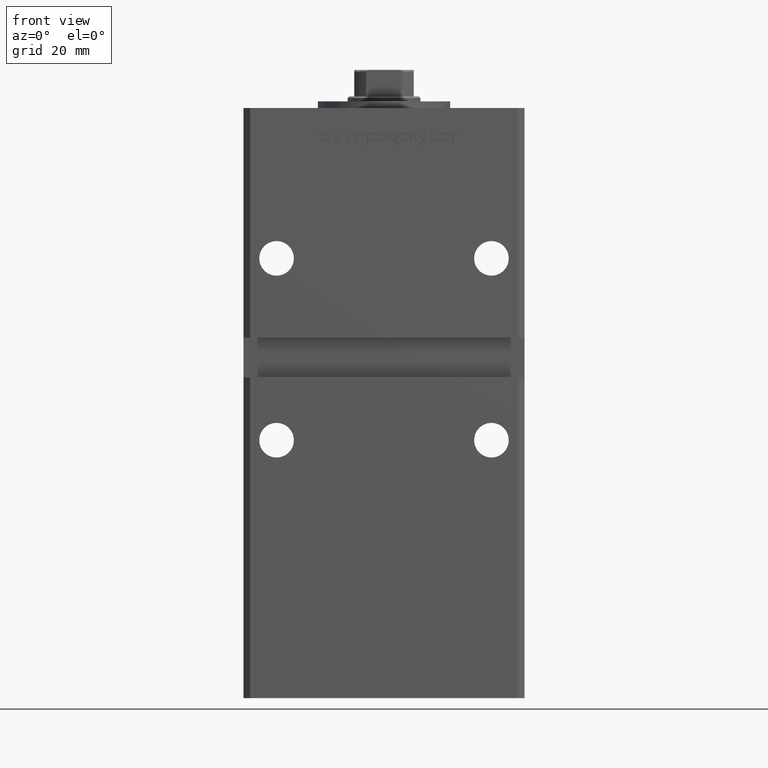
[diagram: clean part render]
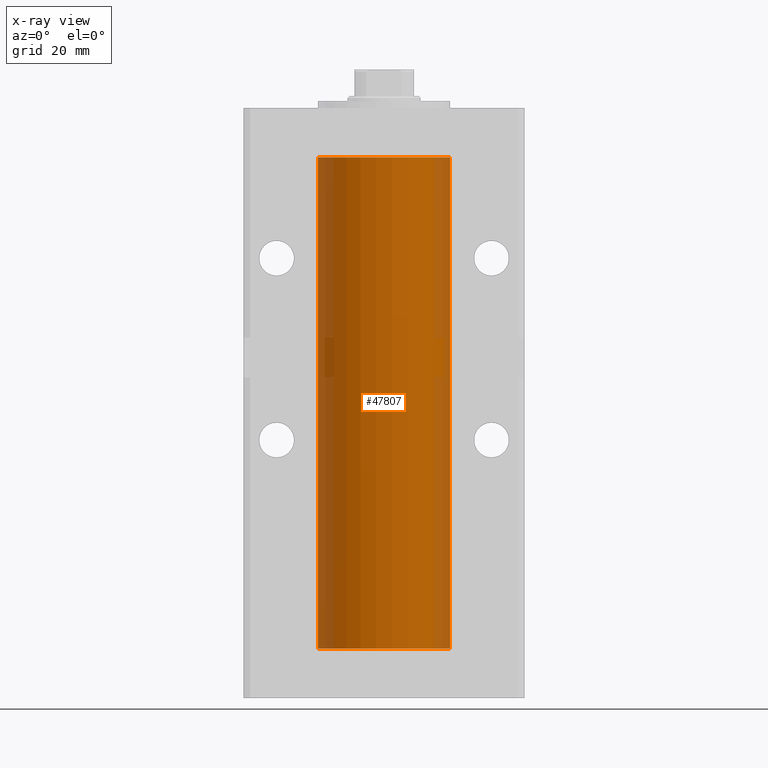
[diagram: x-ray — body ghosted, one internal face saturated and labeled with its STEP entity id]
A machine part, front view, then the same camera in x-ray: the body is ghosted and one INTERNAL B-rep face — a face not visible from any outside direction — is saturated and labeled: STEP entity #47807.
In plain terms, the highlighted cylindrical surface (partial cylindrical patch) has radius 20 mm, axis along (-0, -0, -1).
Its self-contained STEP definition (entity closure, byte-faithful):
#2777 = DIRECTION ( 'NONE',  ( -0.000000000000000000, -0.000000000000000000, -1.000000000000000000 ) ) ;
#2890 = VECTOR ( 'NONE', #51630, 1000.000000000000000 ) ;
#3007 = CARTESIAN_POINT ( 'NONE',  ( -20.00000000000000000, 0.000000000000000000, 148.5000000000000000 ) ) ;
#5040 = ORIENTED_EDGE ( 'NONE', *, *, #47344, .T. ) ;
#6278 = DIRECTION ( 'NONE',  ( -1.000000000000000000, 0.000000000000000000, 0.000000000000000000 ) ) ;
#6811 = FACE_OUTER_BOUND ( 'NONE', #30926, .T. ) ;
#6934 = CARTESIAN_POINT ( 'NONE',  ( 0.000000000000000000, 0.000000000000000000, 0.000000000000000000 ) ) ;
#8327 = CARTESIAN_POINT ( 'NONE',  ( -20.00000000000000000, 0.000000000000000000, 0.000000000000000000 ) ) ;
#8884 = ORIENTED_EDGE ( 'NONE', *, *, #19935, .F. ) ;
#11592 = EDGE_CURVE ( 'NONE', #43194, #28260, #23650, .T. ) ;
#11735 = CIRCLE ( 'NONE', #14317, 20.00000000000000000 ) ;
#13659 = CARTESIAN_POINT ( 'NONE',  ( 20.00000000000000000, 2.449293598294706513E-15, 148.5000000000000000 ) ) ;
#13901 = CIRCLE ( 'NONE', #52550, 20.00000000000000000 ) ;
#14317 = AXIS2_PLACEMENT_3D ( 'NONE', #6934, #52613, #47795 ) ;
#14802 = AXIS2_PLACEMENT_3D ( 'NONE', #35564, #2777, #6278 ) ;
#15621 = ORIENTED_EDGE ( 'NONE', *, *, #45995, .T. ) ;
#16504 = ORIENTED_EDGE ( 'NONE', *, *, #11592, .F. ) ;
#19935 = EDGE_CURVE ( 'NONE', #28260, #37546, #11735, .T. ) ;
#21451 = DIRECTION ( 'NONE',  ( -0.000000000000000000, -0.000000000000000000, -1.000000000000000000 ) ) ;
#21925 = DIRECTION ( 'NONE',  ( -0.000000000000000000, 0.000000000000000000, 1.000000000000000000 ) ) ;
#23650 = LINE ( 'NONE', #48388, #2890 ) ;
#28260 = VERTEX_POINT ( 'NONE', #8327 ) ;
#30711 = CARTESIAN_POINT ( 'NONE',  ( 20.00000000000000000, 2.449293598294706513E-15, 148.5000000000000000 ) ) ;
#30926 = EDGE_LOOP ( 'NONE', ( #5040, #15621, #8884, #16504 ) ) ;
#33550 = LINE ( 'NONE', #13659, #49935 ) ;
#34984 = CARTESIAN_POINT ( 'NONE',  ( 20.00000000000000000, 2.449293598294706513E-15, 0.000000000000000000 ) ) ;
#35564 = CARTESIAN_POINT ( 'NONE',  ( 0.000000000000000000, 0.000000000000000000, 148.5000000000000000 ) ) ;
#37546 = VERTEX_POINT ( 'NONE', #34984 ) ;
#38519 = CYLINDRICAL_SURFACE ( 'NONE', #14802, 20.00000000000000000 ) ;
#43194 = VERTEX_POINT ( 'NONE', #3007 ) ;
#45995 = EDGE_CURVE ( 'NONE', #50070, #37546, #33550, .T. ) ;
#47344 = EDGE_CURVE ( 'NONE', #43194, #50070, #13901, .T. ) ;
#47795 = DIRECTION ( 'NONE',  ( 1.000000000000000000, 0.000000000000000000, 0.000000000000000000 ) ) ;
#47807 = ADVANCED_FACE ( 'NONE', ( #6811 ), #38519, .F. ) ;
#48388 = CARTESIAN_POINT ( 'NONE',  ( -20.00000000000000000, 0.000000000000000000, 148.5000000000000000 ) ) ;
#49935 = VECTOR ( 'NONE', #21451, 1000.000000000000000 ) ;
#50070 = VERTEX_POINT ( 'NONE', #30711 ) ;
#50694 = DIRECTION ( 'NONE',  ( 1.000000000000000000, 0.000000000000000000, 0.000000000000000000 ) ) ;
#50967 = CARTESIAN_POINT ( 'NONE',  ( 0.000000000000000000, 0.000000000000000000, 148.5000000000000000 ) ) ;
#51630 = DIRECTION ( 'NONE',  ( -0.000000000000000000, -0.000000000000000000, -1.000000000000000000 ) ) ;
#52550 = AXIS2_PLACEMENT_3D ( 'NONE', #50967, #21925, #50694 ) ;
#52613 = DIRECTION ( 'NONE',  ( -0.000000000000000000, 0.000000000000000000, 1.000000000000000000 ) ) ;